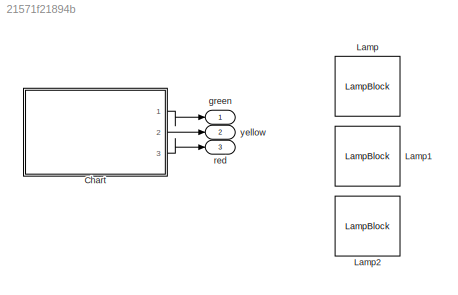
MODEL slx_21571f21894b
KIND model
CONFIG AbsTol = auto
CONFIG EnableMultiTasking = off
CONFIG FixedStep = auto
CONFIG MaxStep = auto
CONFIG MinStep = auto
CONFIG RelTol = 1e-3
CONFIG SampleTimeConstraint = Unconstrained
CONFIG SolverName = VariableStepAuto
CONFIG StartTime = 0.0
CONFIG StopTime = 10.0
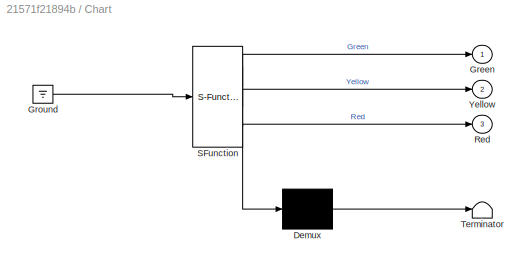
BLOCK [SubSystem] Chart
  ErrorFcn = Stateflow.Translate.translate
  PermitHierarchicalResolution = ExplicitOnly
  Ports = [0, 3]
  RequestExecContextInheritance = off
  SFBlockType = Chart
  TreatAsAtomicUnit = on
BLOCK [Demux] Chart/ Demux 
  Outputs = 1
  Ports = [1, 1]
BLOCK [Ground] Chart/ Ground 
BLOCK [S-Function] Chart/ SFunction 
  EnableBusSupport = on
  FunctionName = sf_sfun
  PortCounts = [1 4]
  Ports = [1, 4]
  SFcnIsStateOwnerBlock = off
  SFunctionDeploymentMode = off
  Tag = Stateflow S-Function 3
BLOCK [Terminator] Chart/ Terminator 
BLOCK [Outport] Chart/Green
BLOCK [Outport] Chart/Red
  Port = 3
BLOCK [Outport] Chart/Yellow
  Port = 2
BLOCK [LampBlock] Lamp
  LabelPosition = Hide
BLOCK [LampBlock] Lamp1
  LabelPosition = Hide
BLOCK [LampBlock] Lamp2
  LabelPosition = Hide
BLOCK [Outport] green
  SignalName = Green
BLOCK [Outport] red
  Port = 3
  SignalName = Red
BLOCK [Outport] yellow
  Port = 2
  SignalName = Yellow
LINE Chart:1 -> green:1
LINE Chart:2 -> yellow:1
LINE Chart:3 -> red:1
CHART Chart states=3 transitions=4
  STATE_LABEL 'Stop\nentry:\nRed = 1;\nYellow = 0;\nGreen = 0;'
  STATE_LABEL 'PrepareToStop\nentry:\nRed = 0;\nYellow = 1;\nGreen = 0;'
  STATE_LABEL 'Go\nentry:\nRed = 0;\nYellow = 0;\nGreen = 1;'
CHART  states=0 transitions=0
